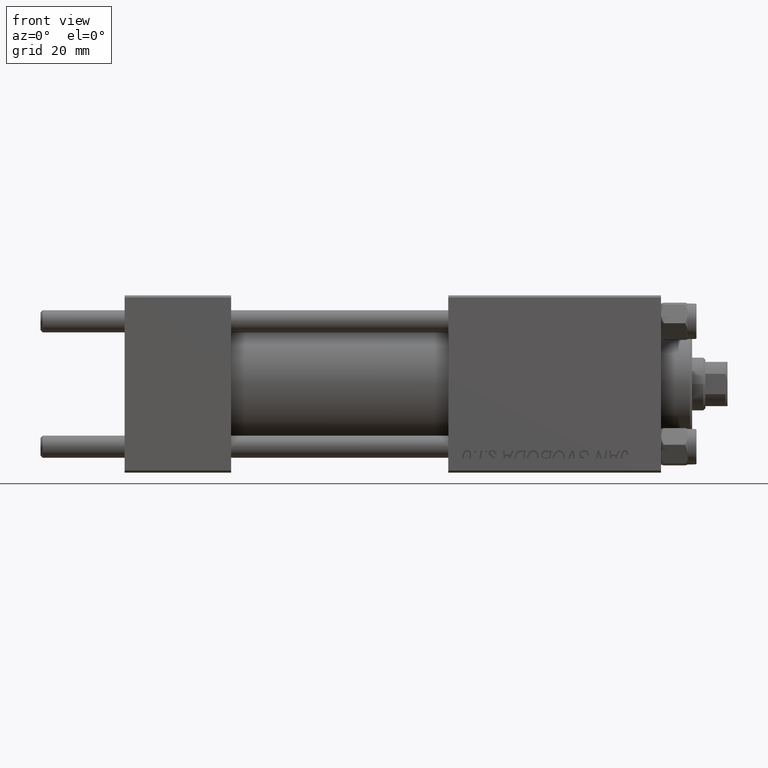
[diagram: clean part render]
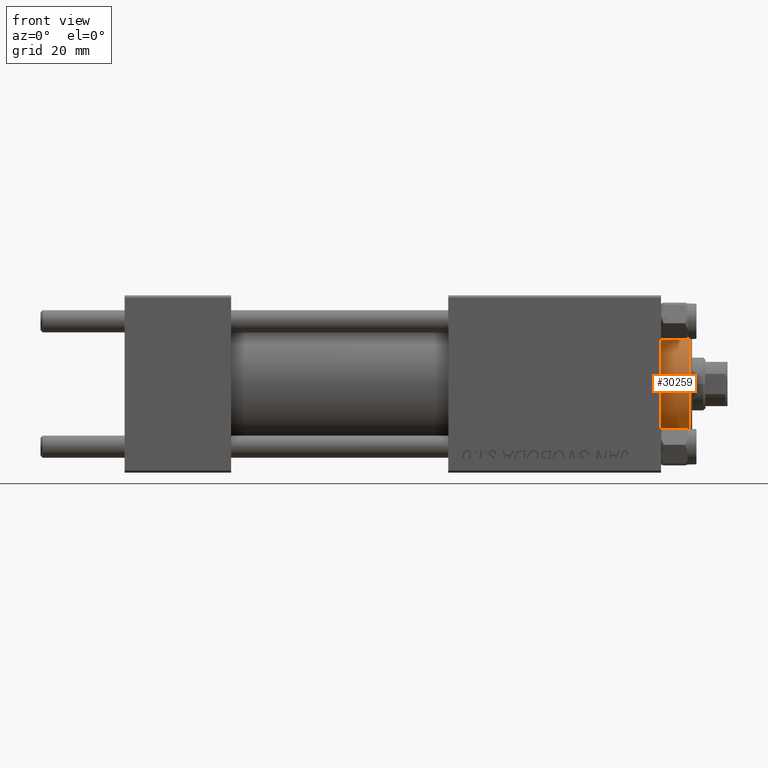
[diagram: same view with one face highlighted and labeled with its STEP entity id]
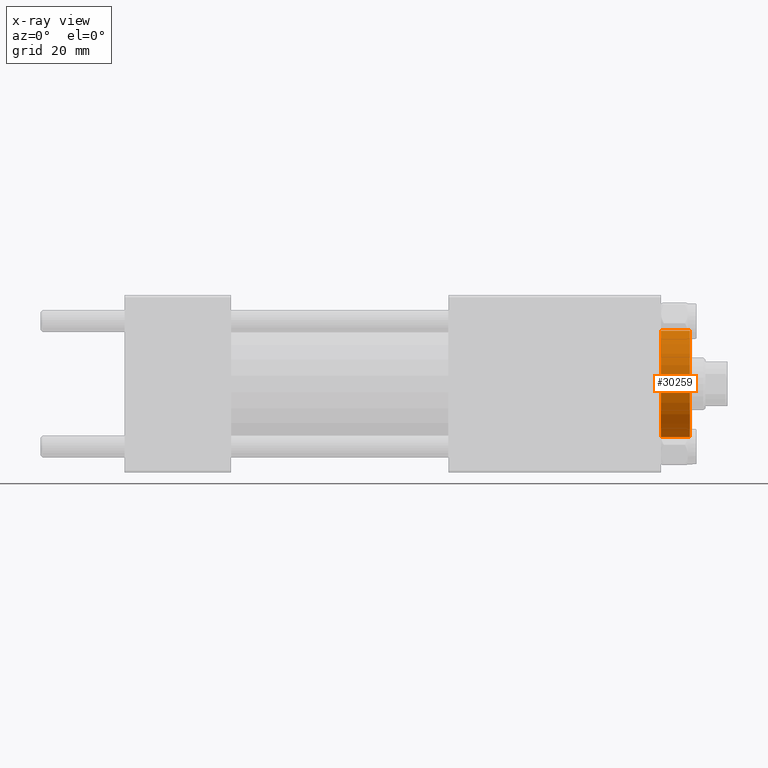
[diagram: x-ray of the same camera — body ghosted, the highlighted face saturated]
A machine part, front view. The second image highlights one B-rep face of the part: STEP entity #30259.
The next image is the same camera in x-ray: the body ghosted, the highlighted face saturated — about 0% of this face is hidden behind the body in this view.
In plain terms, the highlighted cylindrical surface (partial cylindrical patch) has radius 12 mm, axis along (-1, -0, 0).
Its self-contained STEP definition (entity closure, byte-faithful):
#2479 = AXIS2_PLACEMENT_3D ( 'NONE', #18893, #26231, #19144 ) ;
#2899 = EDGE_LOOP ( 'NONE', ( #37669, #46944, #35536, #9914 ) ) ;
#4683 = AXIS2_PLACEMENT_3D ( 'NONE', #44654, #13850, #29243 ) ;
#5496 = CARTESIAN_POINT ( 'NONE',  ( 12.00000000000000178, 1.469576158976824144E-15, 35.70000000000000284 ) ) ;
#7118 = DIRECTION ( 'NONE',  ( -0.000000000000000000, -0.000000000000000000, -1.000000000000000000 ) ) ;
#9914 = ORIENTED_EDGE ( 'NONE', *, *, #41344, .T. ) ;
#10652 = CARTESIAN_POINT ( 'NONE',  ( -12.00000000000000178, 0.000000000000000000, 35.70000000000000284 ) ) ;
#13384 = CIRCLE ( 'NONE', #32744, 12.00000000000000178 ) ;
#13850 = DIRECTION ( 'NONE',  ( -0.000000000000000000, -0.000000000000000000, -1.000000000000000000 ) ) ;
#15695 = VECTOR ( 'NONE', #7118, 1000.000000000000000 ) ;
#17747 = EDGE_CURVE ( 'NONE', #35174, #35843, #29591, .T. ) ;
#18893 = CARTESIAN_POINT ( 'NONE',  ( 0.000000000000000000, 0.000000000000000000, 28.69999999999999929 ) ) ;
#19144 = DIRECTION ( 'NONE',  ( 1.000000000000000000, 0.000000000000000000, 0.000000000000000000 ) ) ;
#20003 = VERTEX_POINT ( 'NONE', #49712 ) ;
#22012 = DIRECTION ( 'NONE',  ( 1.000000000000000000, 0.000000000000000000, 0.000000000000000000 ) ) ;
#22659 = CIRCLE ( 'NONE', #2479, 12.00000000000000178 ) ;
#25857 = EDGE_CURVE ( 'NONE', #27399, #35174, #13384, .T. ) ;
#26231 = DIRECTION ( 'NONE',  ( 0.000000000000000000, 0.000000000000000000, 1.000000000000000000 ) ) ;
#27257 = EDGE_CURVE ( 'NONE', #27399, #20003, #46915, .T. ) ;
#27399 = VERTEX_POINT ( 'NONE', #36119 ) ;
#27929 = VECTOR ( 'NONE', #31283, 1000.000000000000000 ) ;
#29243 = DIRECTION ( 'NONE',  ( -1.000000000000000000, 0.000000000000000000, 0.000000000000000000 ) ) ;
#29591 = LINE ( 'NONE', #10652, #15695 ) ;
#29596 = CARTESIAN_POINT ( 'NONE',  ( 0.000000000000000000, 0.000000000000000000, 35.19999999999999574 ) ) ;
#29998 = FACE_OUTER_BOUND ( 'NONE', #2899, .T. ) ;
#30259 = ADVANCED_FACE ( 'NONE', ( #29998 ), #48690, .T. ) ;
#31283 = DIRECTION ( 'NONE',  ( -0.000000000000000000, -0.000000000000000000, -1.000000000000000000 ) ) ;
#32590 = CARTESIAN_POINT ( 'NONE',  ( -12.00000000000000178, 0.000000000000000000, 28.69999999999999929 ) ) ;
#32744 = AXIS2_PLACEMENT_3D ( 'NONE', #29596, #45004, #22012 ) ;
#35174 = VERTEX_POINT ( 'NONE', #47595 ) ;
#35536 = ORIENTED_EDGE ( 'NONE', *, *, #17747, .T. ) ;
#35843 = VERTEX_POINT ( 'NONE', #32590 ) ;
#36119 = CARTESIAN_POINT ( 'NONE',  ( 12.00000000000000178, 1.469576158976824144E-15, 35.19999999999999574 ) ) ;
#37669 = ORIENTED_EDGE ( 'NONE', *, *, #27257, .F. ) ;
#41344 = EDGE_CURVE ( 'NONE', #35843, #20003, #22659, .T. ) ;
#44654 = CARTESIAN_POINT ( 'NONE',  ( 0.000000000000000000, 0.000000000000000000, 35.70000000000000284 ) ) ;
#45004 = DIRECTION ( 'NONE',  ( 0.000000000000000000, 0.000000000000000000, -1.000000000000000000 ) ) ;
#46915 = LINE ( 'NONE', #5496, #27929 ) ;
#46944 = ORIENTED_EDGE ( 'NONE', *, *, #25857, .T. ) ;
#47595 = CARTESIAN_POINT ( 'NONE',  ( -12.00000000000000178, 0.000000000000000000, 35.19999999999999574 ) ) ;
#48690 = CYLINDRICAL_SURFACE ( 'NONE', #4683, 12.00000000000000178 ) ;
#49712 = CARTESIAN_POINT ( 'NONE',  ( 12.00000000000000178, 0.000000000000000000, 28.69999999999999929 ) ) ;